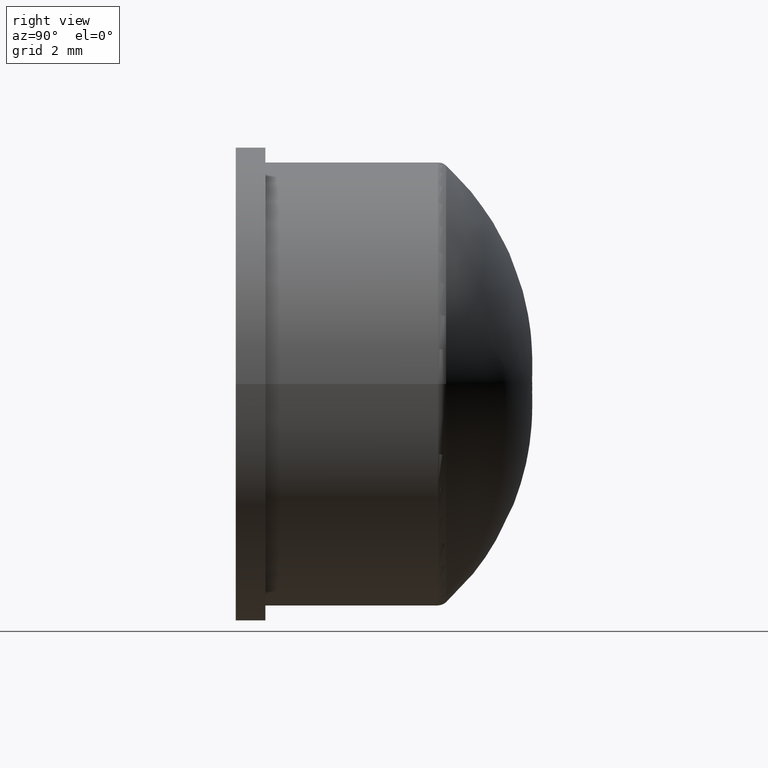
[diagram: clean part render]
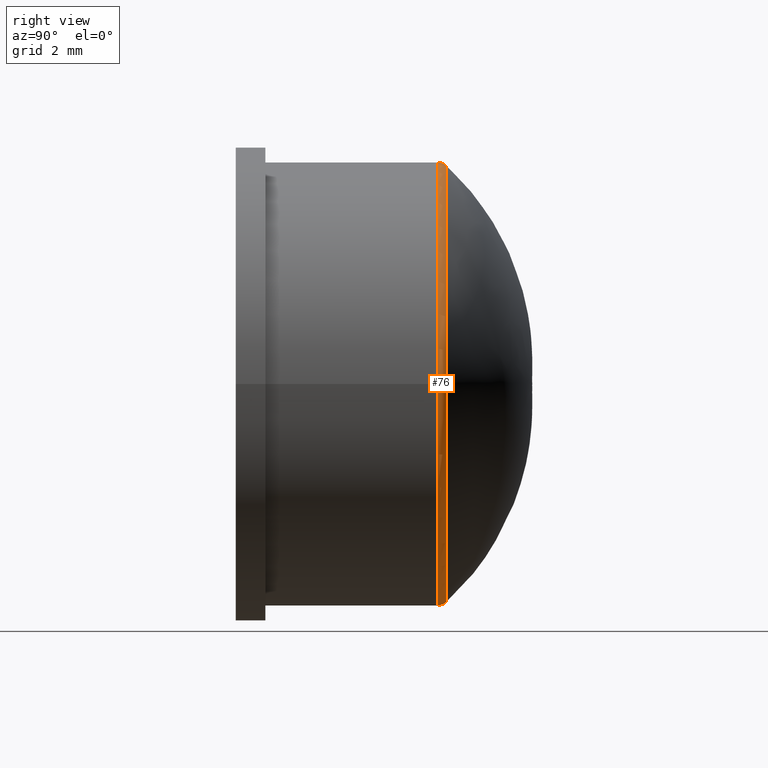
[diagram: same view with one face highlighted and labeled with its STEP entity id]
A machine part, right view. The second image highlights one B-rep face of the part: STEP entity #76.
In plain terms, the highlighted toroidal blend (fillet) surface has major radius 3.55 mm and minor (blend) radius 0.2 mm.
Its self-contained STEP definition (entity closure, byte-faithful):
#21=FACE_BOUND('',#32,.T.);
#25=FACE_OUTER_BOUND('',#31,.T.);
#31=EDGE_LOOP('',(#61,#62));
#32=EDGE_LOOP('',(#63));
#41=CIRCLE('',#85,3.6973730459566);
#42=CIRCLE('',#86,3.6973730459566);
#43=CIRCLE('',#87,3.75);
#47=VERTEX_POINT('',#121);
#48=VERTEX_POINT('',#122);
#49=VERTEX_POINT('',#125);
#54=EDGE_CURVE('',#47,#48,#41,.T.);
#55=EDGE_CURVE('',#48,#47,#42,.T.);
#56=EDGE_CURVE('',#49,#49,#43,.T.);
#61=ORIENTED_EDGE('',*,*,#54,.T.);
#62=ORIENTED_EDGE('',*,*,#55,.T.);
#63=ORIENTED_EDGE('',*,*,#56,.T.);
#75=TOROIDAL_SURFACE('',#84,3.55,0.2);
#76=ADVANCED_FACE('',(#25,#21),#75,.T.);
#84=AXIS2_PLACEMENT_3D('',#120,#97,#98);
#85=AXIS2_PLACEMENT_3D('',#123,#99,#100);
#86=AXIS2_PLACEMENT_3D('',#124,#101,#102);
#87=AXIS2_PLACEMENT_3D('',#126,#103,#104);
#97=DIRECTION('center_axis',(3.33066907387547E-16,-1.,0.));
#98=DIRECTION('ref_axis',(0.,0.,-1.));
#99=DIRECTION('center_axis',(3.33066907387547E-16,-1.,0.));
#100=DIRECTION('ref_axis',(-1.,-3.00273467357934E-16,1.22464679914735E-16));
#101=DIRECTION('center_axis',(3.33066907387547E-16,-1.,0.));
#102=DIRECTION('ref_axis',(-1.,-3.00273467357934E-16,1.22464679914735E-16));
#103=DIRECTION('center_axis',(-3.33066907387547E-16,1.,0.));
#104=DIRECTION('ref_axis',(-1.,-3.33066907387547E-16,1.22464679914735E-16));
#120=CARTESIAN_POINT('Origin',(-1.1401444300645E-15,3.42316935359135,0.));
#121=CARTESIAN_POINT('',(3.6973730459566,3.55837728725455,-6.16297582203915E-32));
#122=CARTESIAN_POINT('',(-1.18517771838396E-15,3.55837728725455,3.6973730459566));
#123=CARTESIAN_POINT('Origin',(-1.18517771838396E-15,3.55837728725455,0.));
#124=CARTESIAN_POINT('Origin',(-1.18517771838396E-15,3.55837728725455,0.));
#125=CARTESIAN_POINT('',(3.75,3.42316935359135,-9.18485099360515E-16));
#126=CARTESIAN_POINT('Origin',(-1.1401444300645E-15,3.42316935359135,0.));